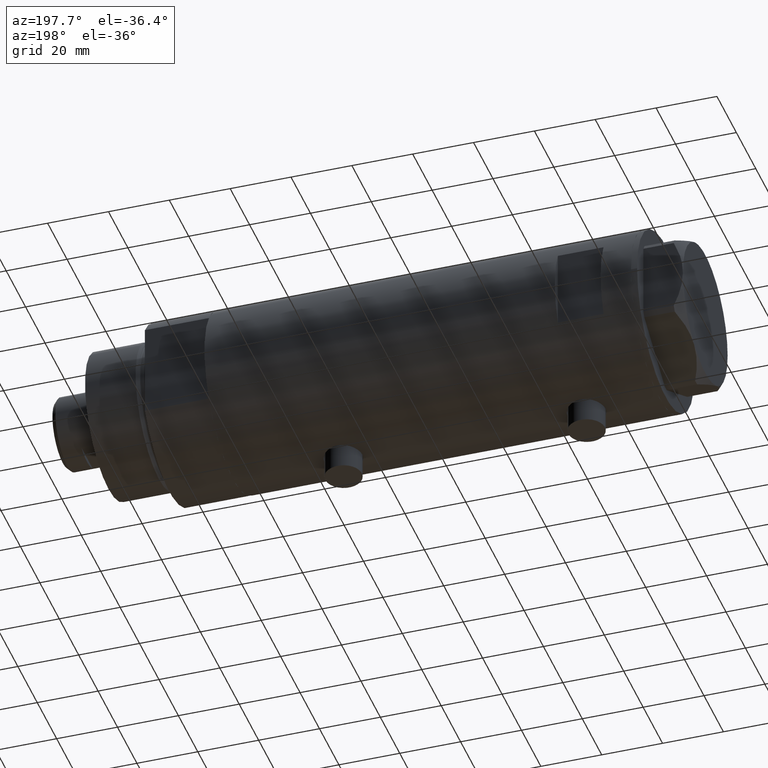
[diagram: clean part render]
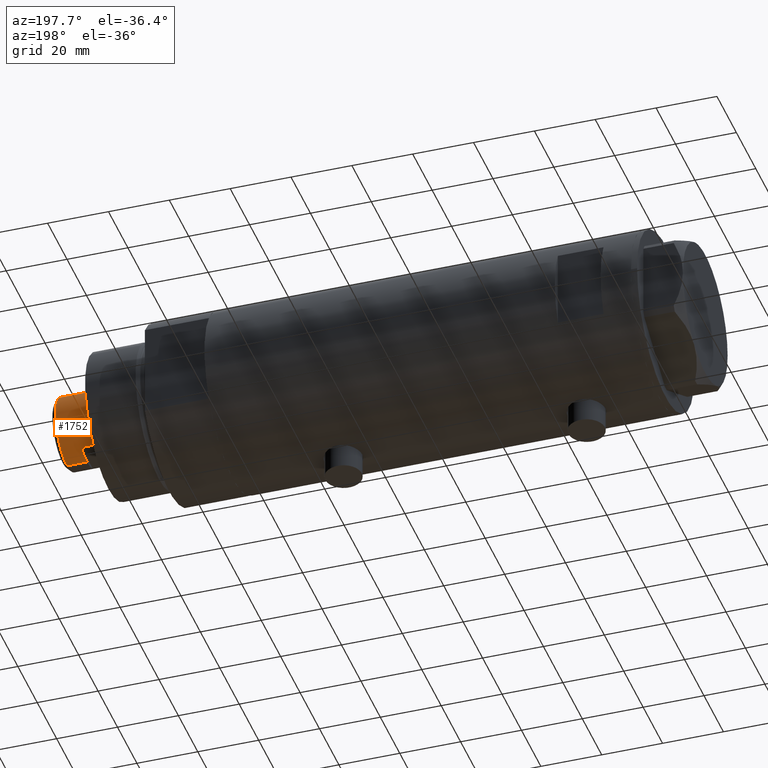
[diagram: same view with one face highlighted and labeled with its STEP entity id]
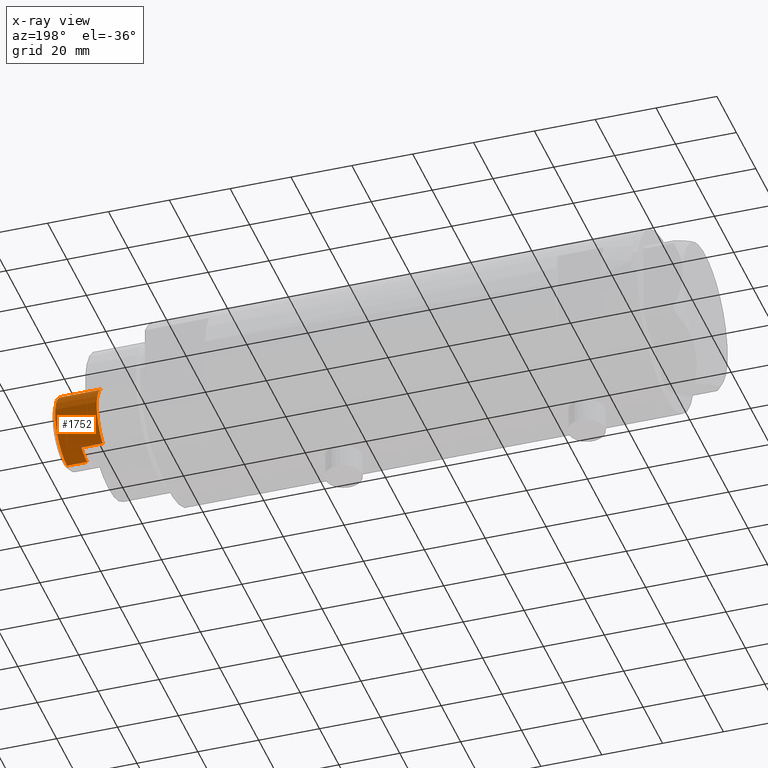
[diagram: x-ray of the same camera — body ghosted, the highlighted face saturated]
A machine part, auxiliary view. The second image highlights one B-rep face of the part: STEP entity #1752.
The next image is the same camera in x-ray: the body ghosted, the highlighted face saturated — about 0% of this face is hidden behind the body in this view.
In plain terms, the highlighted cylindrical surface (partial cylindrical patch) has radius 12 mm, axis along (-1, -0, 0).
Its self-contained STEP definition (entity closure, byte-faithful):
#25 = VECTOR ( 'NONE', #649, 1000.000000000000000 ) ;
#47 = DIRECTION ( 'NONE',  ( 1.000000000000000000, 0.000000000000000000, 0.000000000000000000 ) ) ;
#133 = EDGE_CURVE ( 'NONE', #3918, #2890, #2654, .T. ) ;
#159 = EDGE_CURVE ( 'NONE', #537, #2890, #1047, .T. ) ;
#204 = DIRECTION ( 'NONE',  ( -0.000000000000000000, -0.000000000000000000, -1.000000000000000000 ) ) ;
#213 = EDGE_CURVE ( 'NONE', #537, #3101, #3764, .T. ) ;
#273 = DIRECTION ( 'NONE',  ( 1.000000000000000000, 0.000000000000000000, 0.000000000000000000 ) ) ;
#301 = ORIENTED_EDGE ( 'NONE', *, *, #1229, .T. ) ;
#329 = VECTOR ( 'NONE', #1018, 1000.000000000000000 ) ;
#348 = CARTESIAN_POINT ( 'NONE',  ( 10.48861764008966269, 5.830000000000000071, 164.7000000000000171 ) ) ;
#351 = CARTESIAN_POINT ( 'NONE',  ( -10.48861764008966269, 5.829999999999999183, 164.7000000000000171 ) ) ;
#449 = CARTESIAN_POINT ( 'NONE',  ( 10.48861764008966269, 5.830000000000000071, 164.7000000000000171 ) ) ;
#468 = ORIENTED_EDGE ( 'NONE', *, *, #159, .F. ) ;
#537 = VERTEX_POINT ( 'NONE', #4452 ) ;
#649 = DIRECTION ( 'NONE',  ( -0.000000000000000000, -0.000000000000000000, -1.000000000000000000 ) ) ;
#992 = CIRCLE ( 'NONE', #1717, 12.00000000000000178 ) ;
#1018 = DIRECTION ( 'NONE',  ( -0.000000000000000000, -0.000000000000000000, -1.000000000000000000 ) ) ;
#1047 = LINE ( 'NONE', #351, #1099 ) ;
#1099 = VECTOR ( 'NONE', #1745, 1000.000000000000000 ) ;
#1120 = ORIENTED_EDGE ( 'NONE', *, *, #3825, .T. ) ;
#1187 = CIRCLE ( 'NONE', #3700, 12.00000000000000000 ) ;
#1229 = EDGE_CURVE ( 'NONE', #4361, #3245, #1187, .T. ) ;
#1253 = EDGE_CURVE ( 'NONE', #3245, #2713, #2322, .T. ) ;
#1329 = AXIS2_PLACEMENT_3D ( 'NONE', #1923, #3254, #2889 ) ;
#1345 = ORIENTED_EDGE ( 'NONE', *, *, #1253, .T. ) ;
#1424 = LINE ( 'NONE', #348, #25 ) ;
#1469 = VECTOR ( 'NONE', #204, 1000.000000000000000 ) ;
#1603 = DIRECTION ( 'NONE',  ( -0.000000000000000000, -0.000000000000000000, -1.000000000000000000 ) ) ;
#1634 = CARTESIAN_POINT ( 'NONE',  ( 12.00000000000000000, 1.469576158976823947E-15, 171.3000000000000114 ) ) ;
#1659 = CARTESIAN_POINT ( 'NONE',  ( -12.00000000000000355, 0.000000000000000000, 164.7000000000000171 ) ) ;
#1717 = AXIS2_PLACEMENT_3D ( 'NONE', #2838, #2865, #47 ) ;
#1745 = DIRECTION ( 'NONE',  ( -0.000000000000000000, -0.000000000000000000, -1.000000000000000000 ) ) ;
#1752 = ADVANCED_FACE ( 'NONE', ( #2886 ), #1849, .T. ) ;
#1849 = CYLINDRICAL_SURFACE ( 'NONE', #2994, 12.00000000000000000 ) ;
#1923 = CARTESIAN_POINT ( 'NONE',  ( 0.000000000000000000, 0.000000000000000000, 164.7000000000000171 ) ) ;
#2003 = CARTESIAN_POINT ( 'NONE',  ( 0.000000000000000000, 0.000000000000000000, 171.3000000000000114 ) ) ;
#2080 = CARTESIAN_POINT ( 'NONE',  ( -12.00000000000000000, 0.000000000000000000, 164.7000000000000171 ) ) ;
#2171 = DIRECTION ( 'NONE',  ( 0.000000000000000000, 0.000000000000000000, 1.000000000000000000 ) ) ;
#2308 = EDGE_LOOP ( 'NONE', ( #301, #1345, #1120, #3164, #3628, #468, #3870, #3141 ) ) ;
#2322 = LINE ( 'NONE', #3014, #1469 ) ;
#2509 = CARTESIAN_POINT ( 'NONE',  ( 0.000000000000000000, 0.000000000000000000, 157.7000000000000171 ) ) ;
#2654 = CIRCLE ( 'NONE', #3542, 11.99999999999998224 ) ;
#2680 = VERTEX_POINT ( 'NONE', #449 ) ;
#2713 = VERTEX_POINT ( 'NONE', #4395 ) ;
#2775 = CARTESIAN_POINT ( 'NONE',  ( -10.48861764008966269, 5.829999999999960991, 157.7000000000000171 ) ) ;
#2838 = CARTESIAN_POINT ( 'NONE',  ( 0.000000000000000000, 0.000000000000000000, 164.7000000000000171 ) ) ;
#2865 = DIRECTION ( 'NONE',  ( 0.000000000000000000, 0.000000000000000000, 1.000000000000000000 ) ) ;
#2886 = FACE_OUTER_BOUND ( 'NONE', #2308, .T. ) ;
#2889 = DIRECTION ( 'NONE',  ( 1.000000000000000000, 0.000000000000000000, 0.000000000000000000 ) ) ;
#2890 = VERTEX_POINT ( 'NONE', #2775 ) ;
#2938 = CARTESIAN_POINT ( 'NONE',  ( 0.000000000000000000, 0.000000000000000000, 164.7000000000000171 ) ) ;
#2994 = AXIS2_PLACEMENT_3D ( 'NONE', #2938, #1603, #3898 ) ;
#3014 = CARTESIAN_POINT ( 'NONE',  ( 12.00000000000000000, 1.469576158976823947E-15, 164.7000000000000171 ) ) ;
#3101 = VERTEX_POINT ( 'NONE', #1659 ) ;
#3141 = ORIENTED_EDGE ( 'NONE', *, *, #3747, .F. ) ;
#3164 = ORIENTED_EDGE ( 'NONE', *, *, #3321, .T. ) ;
#3245 = VERTEX_POINT ( 'NONE', #1634 ) ;
#3252 = CARTESIAN_POINT ( 'NONE',  ( 10.48861764008966269, 5.830000000000000071, 157.7000000000000171 ) ) ;
#3254 = DIRECTION ( 'NONE',  ( 0.000000000000000000, 0.000000000000000000, 1.000000000000000000 ) ) ;
#3321 = EDGE_CURVE ( 'NONE', #2680, #3918, #1424, .T. ) ;
#3370 = LINE ( 'NONE', #2080, #329 ) ;
#3533 = DIRECTION ( 'NONE',  ( 1.000000000000000000, 0.000000000000000000, 0.000000000000000000 ) ) ;
#3542 = AXIS2_PLACEMENT_3D ( 'NONE', #2509, #2171, #3533 ) ;
#3628 = ORIENTED_EDGE ( 'NONE', *, *, #133, .T. ) ;
#3700 = AXIS2_PLACEMENT_3D ( 'NONE', #2003, #4326, #273 ) ;
#3747 = EDGE_CURVE ( 'NONE', #4361, #3101, #3370, .T. ) ;
#3764 = CIRCLE ( 'NONE', #1329, 12.00000000000000178 ) ;
#3825 = EDGE_CURVE ( 'NONE', #2713, #2680, #992, .T. ) ;
#3870 = ORIENTED_EDGE ( 'NONE', *, *, #213, .T. ) ;
#3898 = DIRECTION ( 'NONE',  ( -1.000000000000000000, 0.000000000000000000, 0.000000000000000000 ) ) ;
#3918 = VERTEX_POINT ( 'NONE', #3252 ) ;
#3946 = CARTESIAN_POINT ( 'NONE',  ( -12.00000000000000000, 0.000000000000000000, 171.3000000000000114 ) ) ;
#4326 = DIRECTION ( 'NONE',  ( 0.000000000000000000, 0.000000000000000000, -1.000000000000000000 ) ) ;
#4361 = VERTEX_POINT ( 'NONE', #3946 ) ;
#4395 = CARTESIAN_POINT ( 'NONE',  ( 12.00000000000000355, 1.469576158976824342E-15, 164.7000000000000171 ) ) ;
#4452 = CARTESIAN_POINT ( 'NONE',  ( -10.48861764008966269, 5.829999999999999183, 164.7000000000000171 ) ) ;